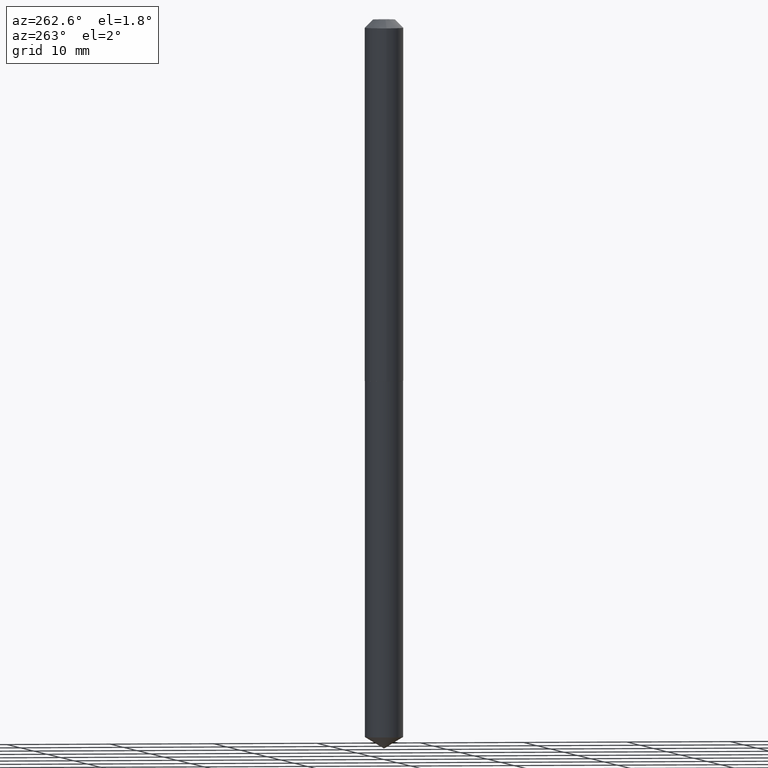
[diagram: clean part render]
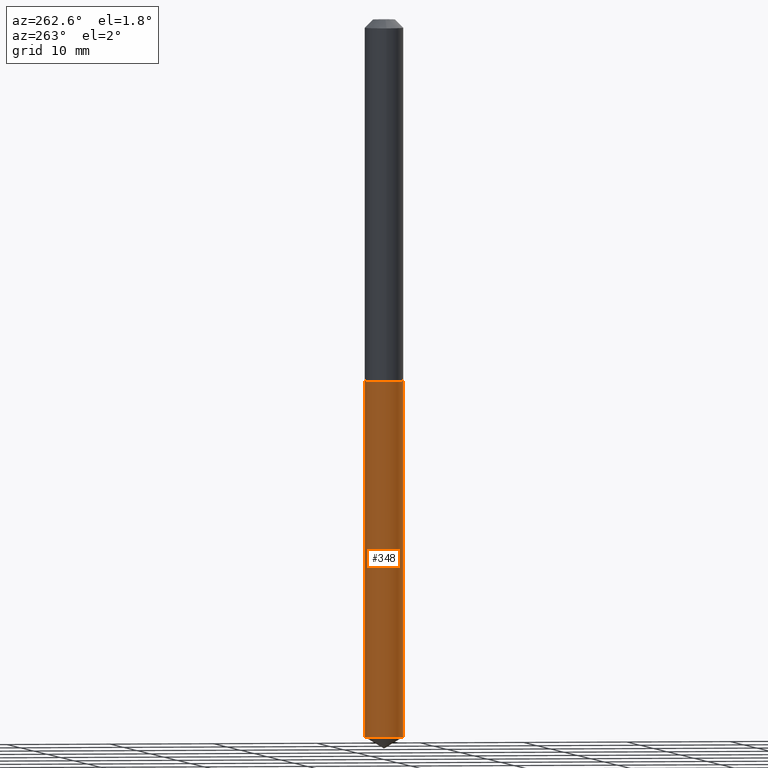
[diagram: same view with one face highlighted and labeled with its STEP entity id]
A machine part, auxiliary view. The second image highlights one B-rep face of the part: STEP entity #348.
In plain terms, the highlighted cylindrical surface (edge-blend (fillet) strip) has radius 1.8504 mm, axis along (-0, 0, 1).
Its self-contained STEP definition (entity closure, byte-faithful):
#3 = CARTESIAN_POINT ( 'NONE',  ( 5.176303830012663012E-16, 0.07284999999999522413, -1.366200000000000081 ) ) ;
#28 = ORIENTED_EDGE ( 'NONE', *, *, #248, .F. ) ;
#50 = LINE ( 'NONE', #258, #221 ) ;
#57 = DIRECTION ( 'NONE',  ( -2.445494545529433837E-29, 3.491444478637119105E-15, 1.000000000000000000 ) ) ;
#66 = CIRCLE ( 'NONE', #321, 0.07284999999999999809 ) ;
#67 = DIRECTION ( 'NONE',  ( -2.445494545529433837E-29, 3.491444478637119500E-15, 1.000000000000000000 ) ) ;
#69 = ORIENTED_EDGE ( 'NONE', *, *, #361, .F. ) ;
#103 = CYLINDRICAL_SURFACE ( 'NONE', #138, 0.07284999999999999809 ) ;
#136 = VECTOR ( 'NONE', #57, 39.37007874015748143 ) ;
#138 = AXIS2_PLACEMENT_3D ( 'NONE', #307, #280, #339 ) ;
#157 = DIRECTION ( 'NONE',  ( -6.982962677686265922E-15, -1.000000000000000000, 3.749962928845934523E-15 ) ) ;
#162 = VERTEX_POINT ( 'NONE', #234 ) ;
#178 = EDGE_CURVE ( 'NONE', #368, #162, #50, .T. ) ;
#183 = DIRECTION ( 'NONE',  ( -2.445494545529433837E-29, 3.491444478637119500E-15, 1.000000000000000000 ) ) ;
#220 = CARTESIAN_POINT ( 'NONE',  ( 3.340999483010132766E-29, -4.770061805127504889E-15, -1.366199999999999859 ) ) ;
#221 = VECTOR ( 'NONE', #262, 39.37007874015748143 ) ;
#234 = CARTESIAN_POINT ( 'NONE',  ( -5.087088310694110530E-16, -0.07285000000000477205, -1.366199999999999415 ) ) ;
#242 = DIRECTION ( 'NONE',  ( -6.982962677686265133E-15, -1.000000000000000000, 0.000000000000000000 ) ) ;
#248 = EDGE_CURVE ( 'NONE', #273, #278, #298, .T. ) ;
#258 = CARTESIAN_POINT ( 'NONE',  ( -5.087088310694110530E-16, -0.07285000000000477205, -1.366199999999999415 ) ) ;
#262 = DIRECTION ( 'NONE',  ( -2.445494545529433837E-29, 3.491444478637119105E-15, 1.000000000000000000 ) ) ;
#269 = CARTESIAN_POINT ( 'NONE',  ( 5.176303830012991375E-16, 0.07284999999999051956, -2.712127303903842268 ) ) ;
#272 = EDGE_CURVE ( 'NONE', #273, #368, #366, .T. ) ;
#273 = VERTEX_POINT ( 'NONE', #269 ) ;
#278 = VERTEX_POINT ( 'NONE', #364 ) ;
#280 = DIRECTION ( 'NONE',  ( -2.445494545529433837E-29, 3.491444478637119500E-15, 1.000000000000000000 ) ) ;
#283 = ORIENTED_EDGE ( 'NONE', *, *, #272, .T. ) ;
#289 = AXIS2_PLACEMENT_3D ( 'NONE', #358, #183, #242 ) ;
#298 = LINE ( 'NONE', #3, #136 ) ;
#307 = CARTESIAN_POINT ( 'NONE',  ( 3.340999483010132766E-29, -4.770061805127504889E-15, -1.366199999999999859 ) ) ;
#311 = CARTESIAN_POINT ( 'NONE',  ( -5.087088310693781180E-16, -0.07285000000000946274, -2.712127303903842268 ) ) ;
#321 = AXIS2_PLACEMENT_3D ( 'NONE', #220, #67, #157 ) ;
#335 = FACE_OUTER_BOUND ( 'NONE', #379, .T. ) ;
#339 = DIRECTION ( 'NONE',  ( -6.982962677686265922E-15, -1.000000000000000000, 3.749962928845934523E-15 ) ) ;
#348 = ADVANCED_FACE ( 'NONE', ( #335 ), #103, .T. ) ;
#358 = CARTESIAN_POINT ( 'NONE',  ( 6.632457363386118118E-29, -9.469292258989520531E-15, -2.712127303903842268 ) ) ;
#361 = EDGE_CURVE ( 'NONE', #278, #162, #66, .T. ) ;
#364 = CARTESIAN_POINT ( 'NONE',  ( 5.176303830012994334E-16, 0.07284999999999522413, -1.366200000000000081 ) ) ;
#366 = CIRCLE ( 'NONE', #289, 0.07285000000000001197 ) ;
#368 = VERTEX_POINT ( 'NONE', #311 ) ;
#371 = ORIENTED_EDGE ( 'NONE', *, *, #178, .T. ) ;
#379 = EDGE_LOOP ( 'NONE', ( #28, #283, #371, #69 ) ) ;